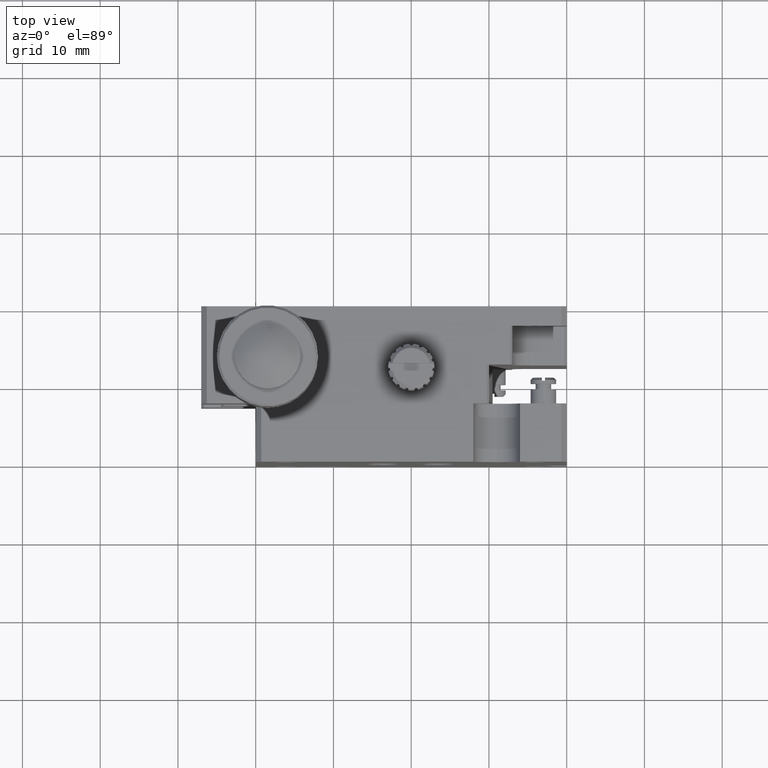
[diagram: clean part render]
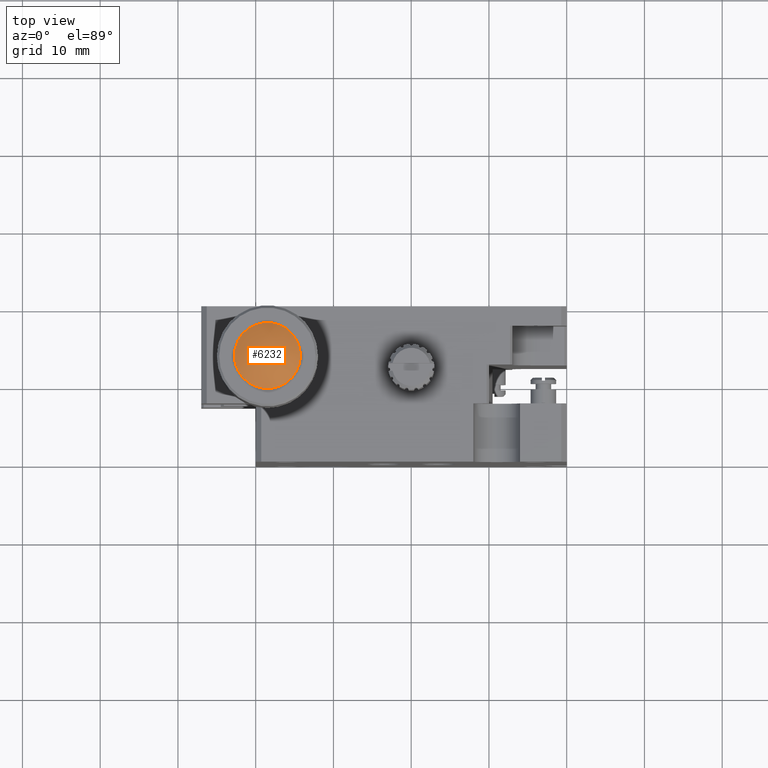
[diagram: same view with one face highlighted and labeled with its STEP entity id]
A machine part, top view. The second image highlights one B-rep face of the part: STEP entity #6232.
In plain terms, the highlighted face is a freeform B-spline surface patch.
Its self-contained STEP definition (entity closure, byte-faithful):
#219 =( BOUNDED_SURFACE ( )  B_SPLINE_SURFACE ( 3, 3, ( 
 ( #8290, #8278, #8266, #8267 ),
 ( #8268, #8280, #8262, #8281 ),
 ( #8260, #8303, #8293, #8263 ),
 ( #8264, #8282, #8284, #8286 ) ),
 .UNSPECIFIED., .F., .F., .F. ) 
 B_SPLINE_SURFACE_WITH_KNOTS ( ( 4, 4 ),
 ( 4, 4 ),
 ( 0.0000000000000000000, 1.000000000000000000 ),
 ( 0.0000000000000000000, 1.000000000000000000 ),
 .UNSPECIFIED. ) 
 GEOMETRIC_REPRESENTATION_ITEM ( )  RATIONAL_B_SPLINE_SURFACE ( (
 ( 1.000000000000000000, 0.8477164530019635200, 0.8477164530019635200, 1.000000000000000000),
 ( 0.8478520723568723200, 0.7187381514487318800, 0.7187381514487318800, 0.8478520723568723200),
 ( 0.8478520723568723200, 0.7187381514487318800, 0.7187381514487318800, 0.8478520723568723200),
 ( 1.000000000000000000, 0.8477164530019635200, 0.8477164530019635200, 1.000000000000000000) ) ) 
 REPRESENTATION_ITEM ( '' )  SURFACE ( )  );
#945 = AXIS2_PLACEMENT_3D ( 'NONE', #8556, #8558, #8594 ) ;
#958 = AXIS2_PLACEMENT_3D ( 'NONE', #3406, #3407, #3414 ) ;
#2057 = EDGE_LOOP ( 'NONE', ( #2571, #2584 ) ) ;
#2571 = ORIENTED_EDGE ( 'NONE', *, *, #6914, .F. ) ;
#2584 = ORIENTED_EDGE ( 'NONE', *, *, #10259, .F. ) ;
#3406 = CARTESIAN_POINT ( 'NONE',  ( 1.500000000000000000, 13.00000000000000200, 37.49999999999990800 ) ) ;
#3407 = DIRECTION ( 'NONE',  ( 6.123233995736769700E-017, 0.0000000000000000000, -1.000000000000000000 ) ) ;
#3414 = DIRECTION ( 'NONE',  ( -1.000000000000000000, 0.0000000000000000000, 0.0000000000000000000 ) ) ;
#3465 = VERTEX_POINT ( 'NONE', #5449 ) ;
#3536 = VERTEX_POINT ( 'NONE', #5502 ) ;
#5449 = CARTESIAN_POINT ( 'NONE',  ( -2.750000000000000400, 13.00000000000000200, 37.49999999999990800 ) ) ;
#5502 = CARTESIAN_POINT ( 'NONE',  ( 5.750000000000000000, 13.00000000000000200, 37.49999999999990800 ) ) ;
#6232 = ADVANCED_FACE ( 'NONE', ( #9929 ), #219, .T. ) ;
#6914 = EDGE_CURVE ( 'NONE', #3465, #3536, #8855, .T. ) ;
#8260 = CARTESIAN_POINT ( 'NONE',  ( 3.210655744794750800, 8.302825465193848200, 37.91387678840833100 ) ) ;
#8262 = CARTESIAN_POINT ( 'NONE',  ( -0.1748496190022865400, 14.83814110240911100, 40.27662901978438700 ) ) ;
#8263 = CARTESIAN_POINT ( 'NONE',  ( 3.210655744794750800, 17.68510659806178300, 37.92382641796997700 ) ) ;
#8264 = CARTESIAN_POINT ( 'NONE',  ( 5.818291123929051300, 9.678113767881166400, 36.24938471554794700 ) ) ;
#8266 = CARTESIAN_POINT ( 'NONE',  ( -2.792932092082823100, 14.30370658843178900, 37.93678903362746300 ) ) ;
#8267 = CARTESIAN_POINT ( 'NONE',  ( -2.792932092082822700, 16.32662611196051800, 36.27255662716592600 ) ) ;
#8268 = CARTESIAN_POINT ( 'NONE',  ( -0.1748496190022864300, 8.297593172271335900, 37.92020935887764900 ) ) ;
#8278 = CARTESIAN_POINT ( 'NONE',  ( -2.792932092082823100, 11.68419037650311600, 37.93401111474288700 ) ) ;
#8280 = CARTESIAN_POINT ( 'NONE',  ( -0.1748496190022865400, 11.14479440899010000, 40.27271233567294200 ) ) ;
#8281 = CARTESIAN_POINT ( 'NONE',  ( -0.1748496190022864300, 17.69032544822641400, 37.93017007156512200 ) ) ;
#8282 = CARTESIAN_POINT ( 'NONE',  ( 5.818291123929050500, 11.68944093178293100, 37.91124587216962300 ) ) ;
#8284 = CARTESIAN_POINT ( 'NONE',  ( 5.818291123929050500, 14.29850432862992100, 37.91401270615529000 ) ) ;
#8286 = CARTESIAN_POINT ( 'NONE',  ( 5.818291123929051300, 16.31335167317831700, 36.25642118762507200 ) ) ;
#8290 = CARTESIAN_POINT ( 'NONE',  ( -2.792932092082822700, 9.664805136688576300, 36.26549196453524400 ) ) ;
#8293 = CARTESIAN_POINT ( 'NONE',  ( 3.210655744794750800, 14.83609583218195700, 40.26767449881908300 ) ) ;
#8303 = CARTESIAN_POINT ( 'NONE',  ( 3.210655744794750800, 11.14685866660099100, 40.26376217273945500 ) ) ;
#8556 = CARTESIAN_POINT ( 'NONE',  ( 1.500000000000000000, 13.00000000000000200, 37.49999999999990800 ) ) ;
#8558 = DIRECTION ( 'NONE',  ( 6.123233995736769700E-017, 0.0000000000000000000, -1.000000000000000000 ) ) ;
#8594 = DIRECTION ( 'NONE',  ( -1.000000000000000000, 0.0000000000000000000, 0.0000000000000000000 ) ) ;
#8855 = CIRCLE ( 'NONE', #945, 4.250000000000000000 ) ;
#9304 = CIRCLE ( 'NONE', #958, 4.250000000000000000 ) ;
#9929 = FACE_OUTER_BOUND ( 'NONE', #2057, .T. ) ;
#10259 = EDGE_CURVE ( 'NONE', #3536, #3465, #9304, .T. ) ;